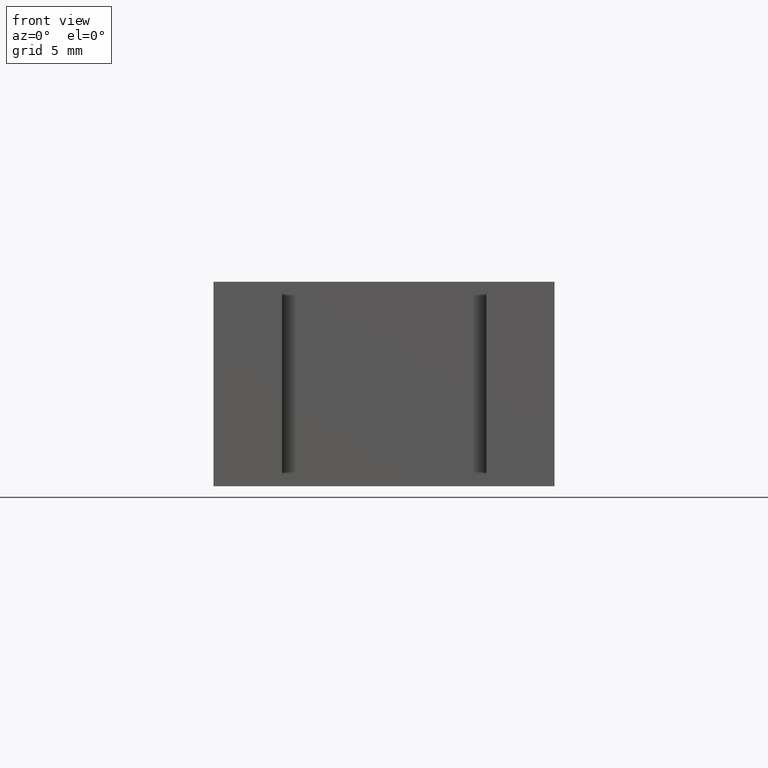
[diagram: clean part render]
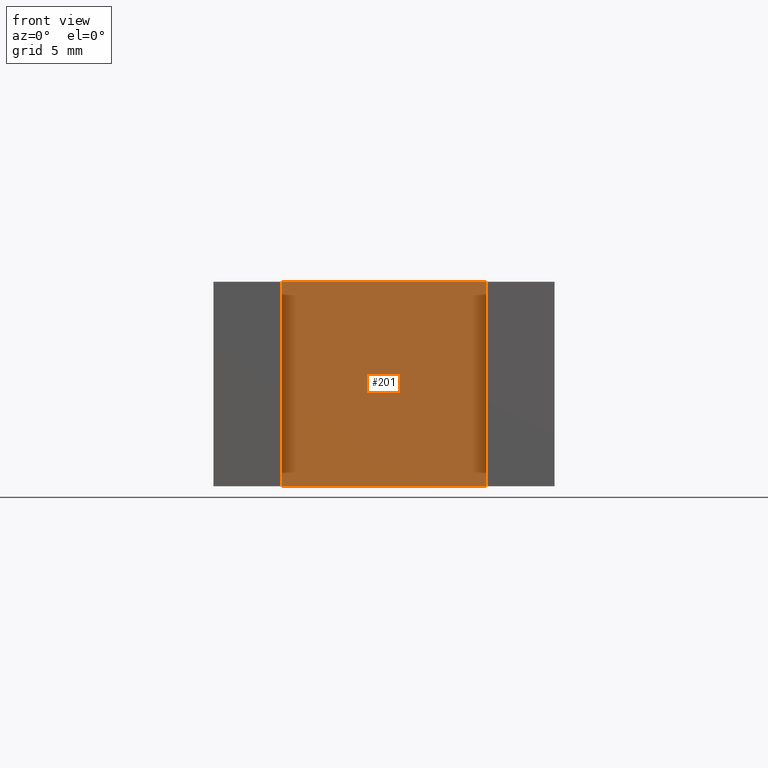
[diagram: same view with one face highlighted and labeled with its STEP entity id]
A machine part, front view. The second image highlights one B-rep face of the part: STEP entity #201.
In plain terms, the highlighted planar face has unit normal (-0, -1, 0).
Its self-contained STEP definition (entity closure, byte-faithful):
#20=FACE_OUTER_BOUND('',#31,.T.);
#31=EDGE_LOOP('',(#143,#144,#145,#146));
#46=LINE('',#314,#71);
#47=LINE('',#317,#72);
#48=LINE('',#319,#73);
#49=LINE('',#320,#74);
#71=VECTOR('',#258,10.);
#72=VECTOR('',#261,10.);
#73=VECTOR('',#262,10.);
#74=VECTOR('',#263,10.);
#94=VERTEX_POINT('',#310);
#95=VERTEX_POINT('',#312);
#96=VERTEX_POINT('',#316);
#97=VERTEX_POINT('',#318);
#114=EDGE_CURVE('',#94,#95,#46,.T.);
#115=EDGE_CURVE('',#94,#96,#47,.T.);
#116=EDGE_CURVE('',#97,#95,#48,.T.);
#117=EDGE_CURVE('',#96,#97,#49,.T.);
#143=ORIENTED_EDGE('',*,*,#115,.F.);
#144=ORIENTED_EDGE('',*,*,#114,.T.);
#145=ORIENTED_EDGE('',*,*,#116,.F.);
#146=ORIENTED_EDGE('',*,*,#117,.F.);
#191=PLANE('',#235);
#201=ADVANCED_FACE('',(#20),#191,.T.);
#235=AXIS2_PLACEMENT_3D('',#315,#259,#260);
#258=DIRECTION('',(0.,0.,-1.));
#259=DIRECTION('center_axis',(-7.40148683083438E-17,-1.,0.));
#260=DIRECTION('ref_axis',(-1.,7.40148683083438E-17,0.));
#261=DIRECTION('',(1.,-7.40148683083438E-17,0.));
#262=DIRECTION('',(-1.,7.40148683083438E-17,0.));
#263=DIRECTION('',(0.,0.,-1.));
#310=CARTESIAN_POINT('',(5.,1.5,0.));
#312=CARTESIAN_POINT('',(5.,1.5,-15.));
#314=CARTESIAN_POINT('',(5.,1.5,0.));
#315=CARTESIAN_POINT('Origin',(20.,1.5,0.));
#316=CARTESIAN_POINT('',(20.,1.5,0.));
#317=CARTESIAN_POINT('',(5.,1.5,0.));
#318=CARTESIAN_POINT('',(20.,1.5,-15.));
#319=CARTESIAN_POINT('',(5.,1.5,-15.));
#320=CARTESIAN_POINT('',(20.,1.5,0.));